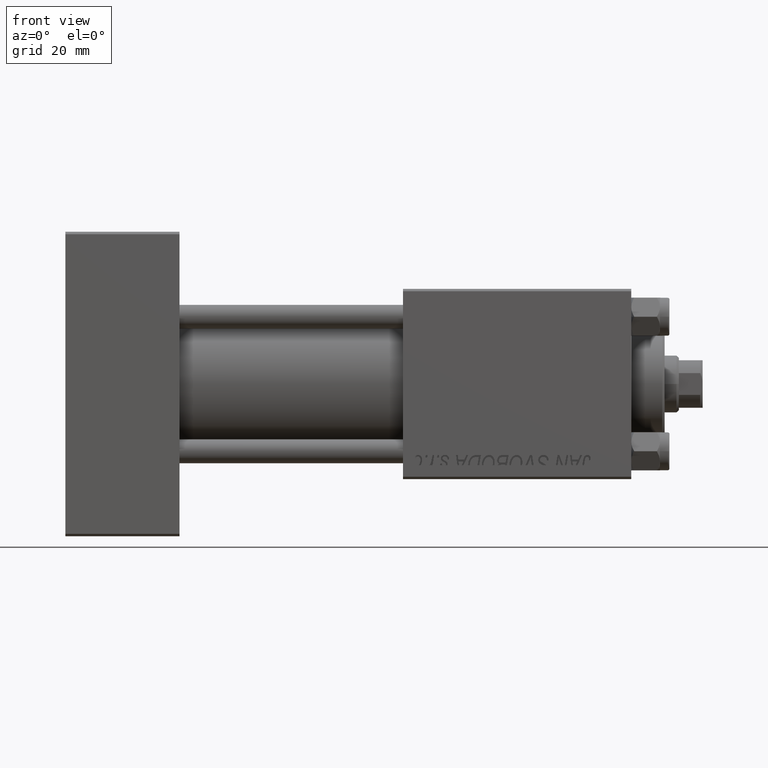
[diagram: clean part render]
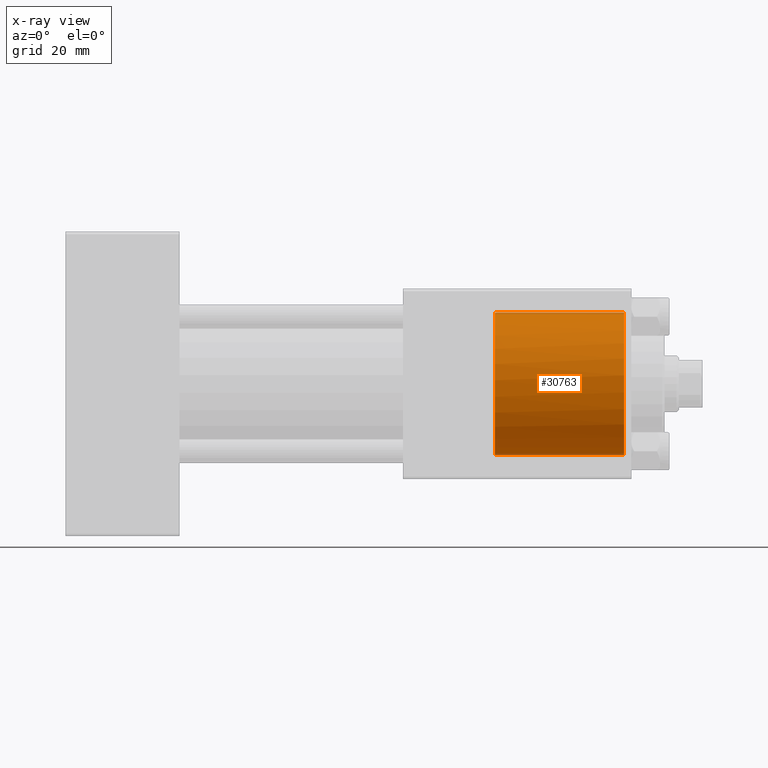
[diagram: x-ray — body ghosted, one internal face saturated and labeled with its STEP entity id]
A machine part, front view, then the same camera in x-ray: the body is ghosted and one INTERNAL B-rep face — a face not visible from any outside direction — is saturated and labeled: STEP entity #30763.
In plain terms, the highlighted cylindrical surface (partial cylindrical patch) has radius 15 mm, axis along (1, 0, 0).
Its self-contained STEP definition (entity closure, byte-faithful):
#10 = EDGE_LOOP ( 'NONE', ( #38847, #16402, #17032, #18705, #30093 ) ) ;
#2169 = VECTOR ( 'NONE', #29721, 1000.000000000000000 ) ;
#2565 = DIRECTION ( 'NONE',  ( 0.000000000000000000, 0.000000000000000000, 1.000000000000000000 ) ) ;
#2798 = VERTEX_POINT ( 'NONE', #7479 ) ;
#3043 = CYLINDRICAL_SURFACE ( 'NONE', #36182, 15.00000000000000000 ) ;
#3478 = LINE ( 'NONE', #49919, #2169 ) ;
#5421 = CARTESIAN_POINT ( 'NONE',  ( 90.30000000000001137, 0.000000000000000000, 0.000000000000000000 ) ) ;
#5652 = DIRECTION ( 'NONE',  ( 1.000000000000000000, -0.000000000000000000, -0.000000000000000000 ) ) ;
#7479 = CARTESIAN_POINT ( 'NONE',  ( 90.30000000000001137, 0.000000000000000000, -15.00000000000000000 ) ) ;
#8172 = CIRCLE ( 'NONE', #17867, 15.00000000000000000 ) ;
#9260 = CARTESIAN_POINT ( 'NONE',  ( 117.5000000000000142, 0.000000000000000000, -15.00000000000000000 ) ) ;
#10897 = CARTESIAN_POINT ( 'NONE',  ( 117.5000000000000142, 0.000000000000000000, 0.000000000000000000 ) ) ;
#11448 = CARTESIAN_POINT ( 'NONE',  ( 90.30000000000001137, -1.899052395280420136, 14.87930105885285670 ) ) ;
#12140 = DIRECTION ( 'NONE',  ( 1.000000000000000000, -0.000000000000000000, -0.000000000000000000 ) ) ;
#12442 = EDGE_CURVE ( 'NONE', #19211, #16717, #8172, .T. ) ;
#12477 = EDGE_CURVE ( 'NONE', #2798, #16717, #27040, .T. ) ;
#13683 = DIRECTION ( 'NONE',  ( 1.000000000000000000, 0.000000000000000000, 0.000000000000000000 ) ) ;
#16402 = ORIENTED_EDGE ( 'NONE', *, *, #25738, .T. ) ;
#16717 = VERTEX_POINT ( 'NONE', #9260 ) ;
#17032 = ORIENTED_EDGE ( 'NONE', *, *, #12442, .T. ) ;
#17435 = CARTESIAN_POINT ( 'NONE',  ( 90.58000000000154728, -0.6482402319151109316, 15.00000000000000000 ) ) ;
#17867 = AXIS2_PLACEMENT_3D ( 'NONE', #10897, #13683, #2565 ) ;
#18705 = ORIENTED_EDGE ( 'NONE', *, *, #12477, .F. ) ;
#19211 = VERTEX_POINT ( 'NONE', #36595 ) ;
#20074 = CARTESIAN_POINT ( 'NONE',  ( 90.58000000000154728, 1.837042777381032933E-15, 15.00000000000000000 ) ) ;
#24580 = FACE_OUTER_BOUND ( 'NONE', #10, .T. ) ;
#25738 = EDGE_CURVE ( 'NONE', #44204, #19211, #3478, .T. ) ;
#27040 = LINE ( 'NONE', #31314, #30777 ) ;
#28533 = CARTESIAN_POINT ( 'NONE',  ( 90.30000000000001137, -1.899052395280420136, 14.87930105885285670 ) ) ;
#28869 = DIRECTION ( 'NONE',  ( 0.000000000000000000, 0.000000000000000000, -1.000000000000000000 ) ) ;
#29721 = DIRECTION ( 'NONE',  ( 1.000000000000000000, -0.000000000000000000, -0.000000000000000000 ) ) ;
#30093 = ORIENTED_EDGE ( 'NONE', *, *, #40972, .F. ) ;
#30763 = ADVANCED_FACE ( 'NONE', ( #24580 ), #3043, .F. ) ;
#30777 = VECTOR ( 'NONE', #12140, 1000.000000000000000 ) ;
#31314 = CARTESIAN_POINT ( 'NONE',  ( 90.30000000000001137, 0.000000000000000000, -15.00000000000000000 ) ) ;
#32078 = CARTESIAN_POINT ( 'NONE',  ( 90.48627106246553353, -1.281108574220369167, 14.95816952780117504 ) ) ;
#32150 = EDGE_CURVE ( 'NONE', #44439, #44204, #47170, .T. ) ;
#36182 = AXIS2_PLACEMENT_3D ( 'NONE', #36448, #5652, #28869 ) ;
#36448 = CARTESIAN_POINT ( 'NONE',  ( 90.30000000000001137, 0.000000000000000000, 0.000000000000000000 ) ) ;
#36595 = CARTESIAN_POINT ( 'NONE',  ( 117.5000000000000142, 1.836970198721029589E-15, 15.00000000000000000 ) ) ;
#38118 = AXIS2_PLACEMENT_3D ( 'NONE', #5421, #43793, #46838 ) ;
#38847 = ORIENTED_EDGE ( 'NONE', *, *, #32150, .T. ) ;
#40165 = CARTESIAN_POINT ( 'NONE',  ( 90.58000000000154728, 1.837042777381032933E-15, 15.00000000000000000 ) ) ;
#40531 = CIRCLE ( 'NONE', #38118, 15.00000000000000000 ) ;
#40972 = EDGE_CURVE ( 'NONE', #44439, #2798, #40531, .T. ) ;
#43793 = DIRECTION ( 'NONE',  ( 1.000000000000000000, 0.000000000000000000, 0.000000000000000000 ) ) ;
#44204 = VERTEX_POINT ( 'NONE', #20074 ) ;
#44439 = VERTEX_POINT ( 'NONE', #11448 ) ;
#46838 = DIRECTION ( 'NONE',  ( 0.000000000000000000, 0.000000000000000000, -1.000000000000000000 ) ) ;
#47170 = B_SPLINE_CURVE_WITH_KNOTS ( 'NONE', 3,
 ( #28533, #32078, #17435, #40165 ),
 .UNSPECIFIED., .F., .F.,
 ( 4, 4 ),
 ( 0.000000000000000000, 0.001923267627926022365 ),
 .UNSPECIFIED. ) ;
#49919 = CARTESIAN_POINT ( 'NONE',  ( 90.30000000000001137, 1.836970198721029589E-15, 15.00000000000000000 ) ) ;